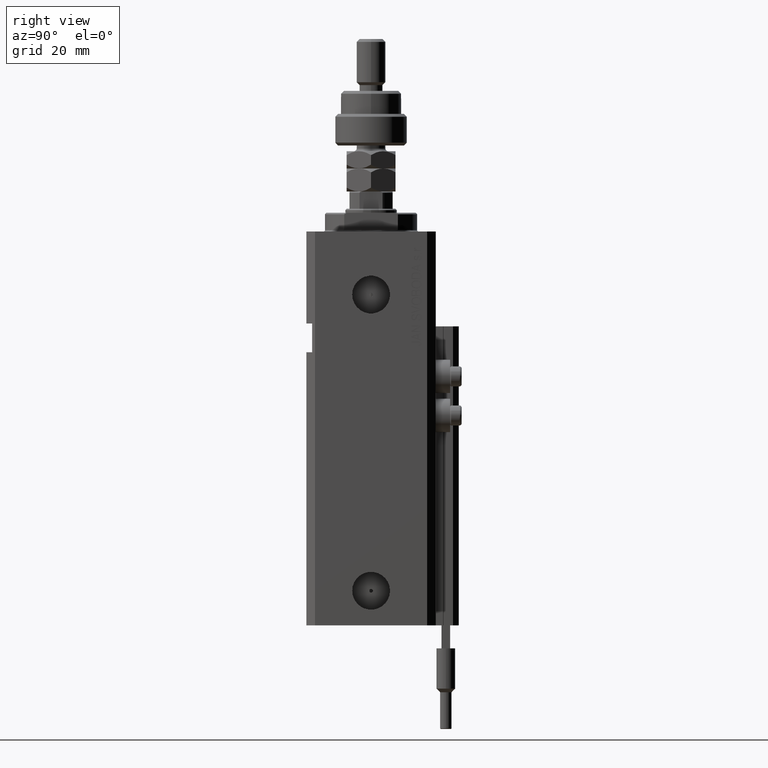
[diagram: clean part render]
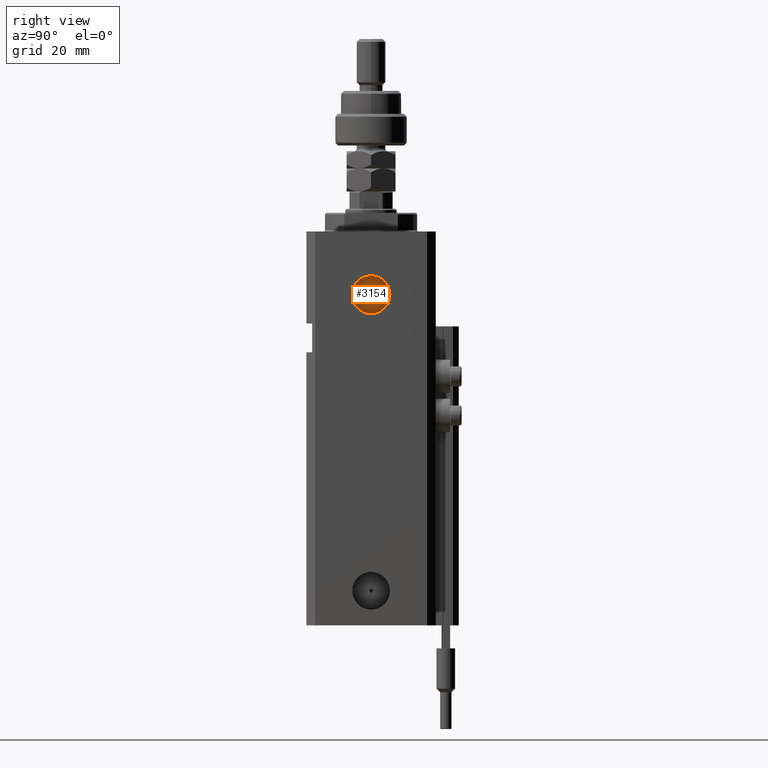
[diagram: same view with one face highlighted and labeled with its STEP entity id]
A machine part, right view. The second image highlights one B-rep face of the part: STEP entity #3154.
In plain terms, the highlighted planar face has unit normal (1, -0, 0).
Its self-contained STEP definition (entity closure, byte-faithful):
#159 = AXIS2_PLACEMENT_3D ( 'NONE', #16274, #40149, #47687 ) ;
#1076 = CARTESIAN_POINT ( 'NONE',  ( 19.39999999999668745, -6.580000000000261196, -22.00000000000000000 ) ) ;
#2610 = CIRCLE ( 'NONE', #6762, 6.580000000000002736 ) ;
#2891 = VERTEX_POINT ( 'NONE', #1076 ) ;
#3154 = ADVANCED_FACE ( 'NONE', ( #25652, #26674 ), #45630, .T. ) ;
#3957 = ORIENTED_EDGE ( 'NONE', *, *, #37289, .T. ) ;
#4837 = CIRCLE ( 'NONE', #33849, 0.6249999999999987788 ) ;
#6762 = AXIS2_PLACEMENT_3D ( 'NONE', #34402, #6891, #38293 ) ;
#6891 = DIRECTION ( 'NONE',  ( 1.000000000000000000, -1.334402673828349134E-14, 0.000000000000000000 ) ) ;
#11550 = DIRECTION ( 'NONE',  ( 1.110223024625158749E-14, 1.000000000000000000, 0.000000000000000000 ) ) ;
#13715 = DIRECTION ( 'NONE',  ( 1.334402673828349134E-14, 1.000000000000000000, 0.000000000000000000 ) ) ;
#14477 = DIRECTION ( 'NONE',  ( 1.000000000000000000, -1.334402673828349134E-14, 0.000000000000000000 ) ) ;
#14518 = CARTESIAN_POINT ( 'NONE',  ( 19.39999999999686153, 6.579999999999744276, -22.00000000000000000 ) ) ;
#16129 = EDGE_CURVE ( 'NONE', #2891, #27825, #28683, .T. ) ;
#16274 = CARTESIAN_POINT ( 'NONE',  ( 19.39999999999677271, -2.588741187226566838E-13, -22.00000000000000000 ) ) ;
#16683 = EDGE_LOOP ( 'NONE', ( #3957, #16852 ) ) ;
#16852 = ORIENTED_EDGE ( 'NONE', *, *, #16129, .T. ) ;
#19072 = CARTESIAN_POINT ( 'NONE',  ( 19.39999999999677982, 0.6249999999997398747, -22.00000000000000000 ) ) ;
#20486 = VERTEX_POINT ( 'NONE', #19072 ) ;
#20511 = EDGE_CURVE ( 'NONE', #29685, #20486, #4837, .T. ) ;
#20970 = AXIS2_PLACEMENT_3D ( 'NONE', #42511, #14477, #13715 ) ;
#21034 = DIRECTION ( 'NONE',  ( 1.318178933113074700E-14, 1.000000000000000000, 0.000000000000000000 ) ) ;
#25652 = FACE_BOUND ( 'NONE', #27895, .T. ) ;
#26674 = FACE_OUTER_BOUND ( 'NONE', #16683, .T. ) ;
#27825 = VERTEX_POINT ( 'NONE', #14518 ) ;
#27895 = EDGE_LOOP ( 'NONE', ( #37258, #30636 ) ) ;
#28683 = CIRCLE ( 'NONE', #35339, 6.580000000000002736 ) ;
#29685 = VERTEX_POINT ( 'NONE', #45747 ) ;
#30636 = ORIENTED_EDGE ( 'NONE', *, *, #20511, .F. ) ;
#31529 = DIRECTION ( 'NONE',  ( 1.000000000000000000, -1.334402673828349134E-14, 0.000000000000000000 ) ) ;
#32734 = DIRECTION ( 'NONE',  ( 1.000000000000000000, -1.334402673828349134E-14, 0.000000000000000000 ) ) ;
#33849 = AXIS2_PLACEMENT_3D ( 'NONE', #51007, #31529, #11550 ) ;
#34402 = CARTESIAN_POINT ( 'NONE',  ( 19.39999999999677271, -2.588741187226566333E-13, -22.00000000000000000 ) ) ;
#34952 = CIRCLE ( 'NONE', #159, 0.6249999999999987788 ) ;
#35339 = AXIS2_PLACEMENT_3D ( 'NONE', #37125, #32734, #21034 ) ;
#37125 = CARTESIAN_POINT ( 'NONE',  ( 19.39999999999677271, -2.588741187226566333E-13, -22.00000000000000000 ) ) ;
#37258 = ORIENTED_EDGE ( 'NONE', *, *, #37860, .F. ) ;
#37289 = EDGE_CURVE ( 'NONE', #27825, #2891, #2610, .T. ) ;
#37860 = EDGE_CURVE ( 'NONE', #20486, #29685, #34952, .T. ) ;
#38293 = DIRECTION ( 'NONE',  ( 1.318178933113074700E-14, 1.000000000000000000, 0.000000000000000000 ) ) ;
#40149 = DIRECTION ( 'NONE',  ( 1.000000000000000000, -1.334402673828349134E-14, 0.000000000000000000 ) ) ;
#42511 = CARTESIAN_POINT ( 'NONE',  ( 19.39999999999677271, -2.588741187226566333E-13, -22.00000000000000000 ) ) ;
#45630 = PLANE ( 'NONE',  #20970 ) ;
#45747 = CARTESIAN_POINT ( 'NONE',  ( 19.39999999999676561, -0.6250000000002576828, -22.00000000000000000 ) ) ;
#47687 = DIRECTION ( 'NONE',  ( 1.110223024625158749E-14, 1.000000000000000000, 0.000000000000000000 ) ) ;
#51007 = CARTESIAN_POINT ( 'NONE',  ( 19.39999999999677271, -2.588741187226566838E-13, -22.00000000000000000 ) ) ;